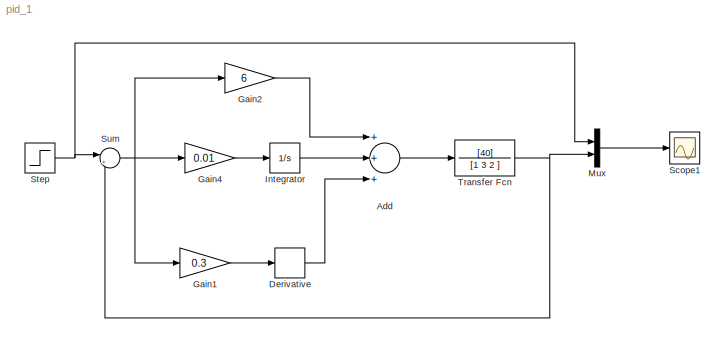
MODEL pid_1
KIND model
BLOCK [Sum] Add
  InputSameDT = off
  Inputs = +++
  OutDataTypeMode = Inherit via internal rule
  OutScaling = 2^-10
  Ports = [3, 1]
  SaturateOnIntegerOverflow = off
BLOCK [Derivative] Derivative
BLOCK [Gain] Gain1
  Gain = 0.3
BLOCK [Gain] Gain2
  Gain = 6
BLOCK [Gain] Gain4
  Gain = 0.01
BLOCK [Integrator] Integrator
  IgnoreLimit = off
  Ports = [1, 1]
BLOCK [Mux] Mux
  DisplayOption = bar
  Inputs = 2
  Ports = [2, 1]
BLOCK [Scope] Scope1
  DataFormat = StructureWithTime
  Floating = off
  NumInputPorts = 1
  Ports = [1]
  SampleTime = 0
BLOCK [Step] Step
  SampleTime = 0
BLOCK [Sum] Sum
  IconShape = round
  InputSameDT = off
  Inputs = |+-
  OutDataTypeMode = Inherit via internal rule
  Ports = [2, 1]
  SaturateOnIntegerOverflow = off
BLOCK [TransferFcn] Transfer Fcn
  Denominator = [1 3 2   ]
  Numerator = [40]
LINE Add:1 -> Transfer Fcn:1
LINE Derivative:1 -> Add:3
LINE Gain1:1 -> Derivative:1
LINE Gain2:1 -> Add:1
LINE Gain4:1 -> Integrator:1
LINE Integrator:1 -> Add:2
LINE Mux:1 -> Scope1:1
NET Step:1 -> Mux:1, Sum:1
NET Sum:1 -> Gain1:1, Gain2:1, Gain4:1
NET Transfer Fcn:1 -> Mux:2, Sum:2
note: NET lines group one-source signal fan-out (src -> all destinations, sorted); 1:1 wires keep LINE
